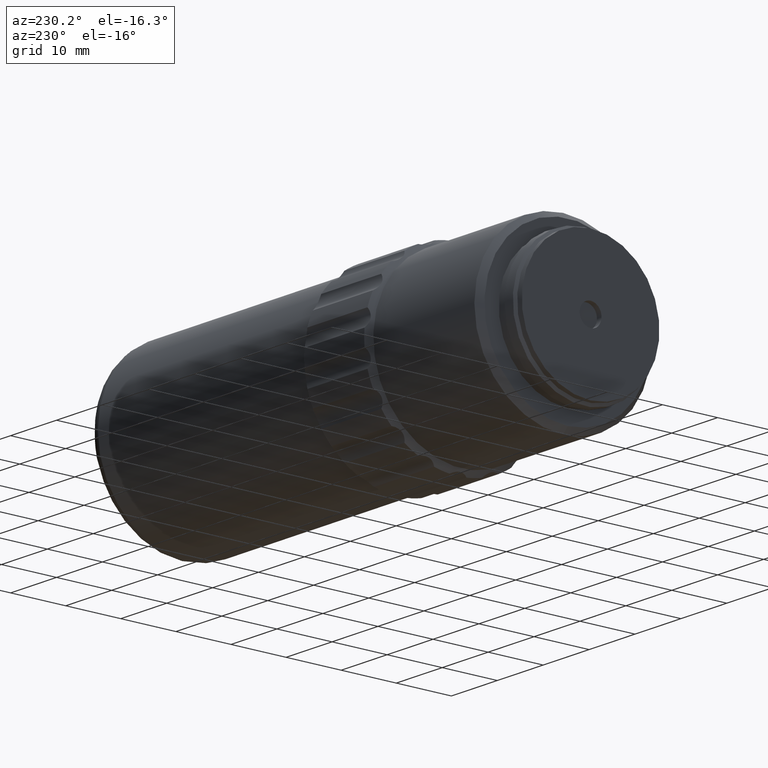
[diagram: clean part render]
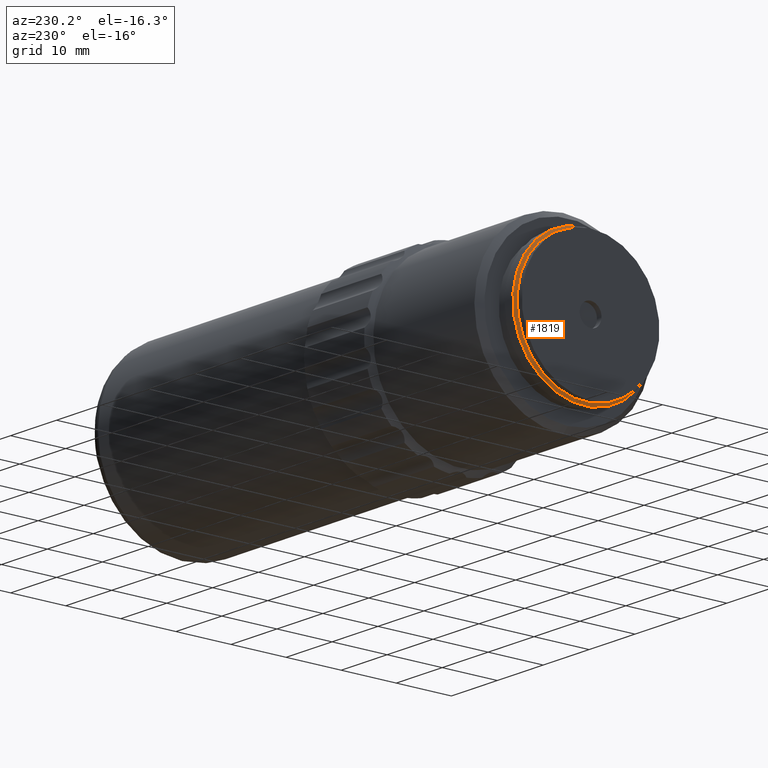
[diagram: same view with one face highlighted and labeled with its STEP entity id]
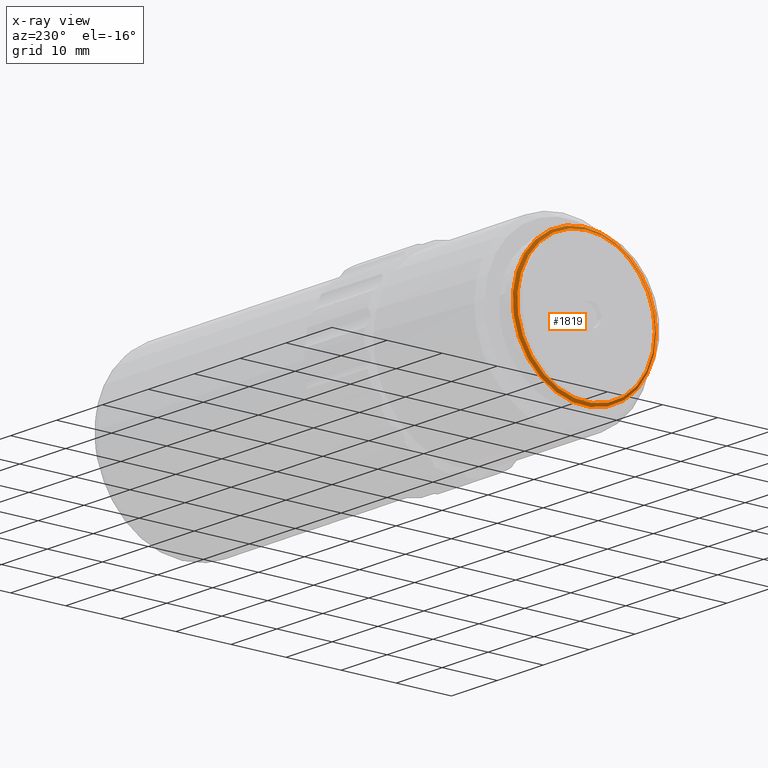
[diagram: x-ray of the same camera — body ghosted, the highlighted face saturated]
A machine part, auxiliary view. The second image highlights one B-rep face of the part: STEP entity #1819.
The next image is the same camera in x-ray: the body ghosted, the highlighted face saturated — about 0% of this face is hidden behind the body in this view.
In plain terms, the highlighted conical surface has half-angle 55 deg.
Its self-contained STEP definition (entity closure, byte-faithful):
#11 = AXIS2_PLACEMENT_3D ( 'NONE', #107, #1839, #376 ) ;
#87 = EDGE_LOOP ( 'NONE', ( #809 ) ) ;
#107 = CARTESIAN_POINT ( 'NONE',  ( -8.553141965121202617, 46.02096199999999726, 0.000000000000000000 ) ) ;
#238 = AXIS2_PLACEMENT_3D ( 'NONE', #1165, #1004, #239 ) ;
#239 = DIRECTION ( 'NONE',  ( 0.000000000000000000, 0.000000000000000000, -1.000000000000000000 ) ) ;
#376 = DIRECTION ( 'NONE',  ( 0.000000000000000000, -1.000000000000000000, 0.000000000000000000 ) ) ;
#564 = CARTESIAN_POINT ( 'NONE',  ( -8.203038196016342098, 46.02096199999999726, 0.000000000000000000 ) ) ;
#715 = EDGE_CURVE ( 'NONE', #1278, #1278, #1706, .T. ) ;
#774 = FACE_BOUND ( 'NONE', #1847, .T. ) ;
#809 = ORIENTED_EDGE ( 'NONE', *, *, #1170, .F. ) ;
#1004 = DIRECTION ( 'NONE',  ( 1.000000000000000000, -0.000000000000000000, 0.000000000000000000 ) ) ;
#1045 = CONICAL_SURFACE ( 'NONE', #238, 12.99999999999999822, 0.9599310885968810325 ) ;
#1109 = CARTESIAN_POINT ( 'NONE',  ( -8.553141965121202617, 33.52096200000000437, 0.000000000000000000 ) ) ;
#1165 = CARTESIAN_POINT ( 'NONE',  ( -8.203038196016347428, 46.02096199999999726, 0.000000000000000000 ) ) ;
#1170 = EDGE_CURVE ( 'NONE', #1654, #1654, #1502, .T. ) ;
#1273 = DIRECTION ( 'NONE',  ( 1.000000000000000000, -0.000000000000000000, -0.000000000000000000 ) ) ;
#1278 = VERTEX_POINT ( 'NONE', #1109 ) ;
#1335 = ORIENTED_EDGE ( 'NONE', *, *, #715, .T. ) ;
#1493 = CARTESIAN_POINT ( 'NONE',  ( -8.203038196016342098, 46.02096199999999726, 13.00000000000000178 ) ) ;
#1502 = CIRCLE ( 'NONE', #2047, 13.00000000000000178 ) ;
#1526 = FACE_OUTER_BOUND ( 'NONE', #87, .T. ) ;
#1654 = VERTEX_POINT ( 'NONE', #1493 ) ;
#1706 = CIRCLE ( 'NONE', #11, 12.49999999999999645 ) ;
#1819 = ADVANCED_FACE ( 'NONE', ( #774, #1526 ), #1045, .T. ) ;
#1839 = DIRECTION ( 'NONE',  ( 1.000000000000000000, 0.000000000000000000, 0.000000000000000000 ) ) ;
#1847 = EDGE_LOOP ( 'NONE', ( #1335 ) ) ;
#2047 = AXIS2_PLACEMENT_3D ( 'NONE', #564, #1273, #2061 ) ;
#2061 = DIRECTION ( 'NONE',  ( 0.000000000000000000, 0.000000000000000000, 1.000000000000000000 ) ) ;